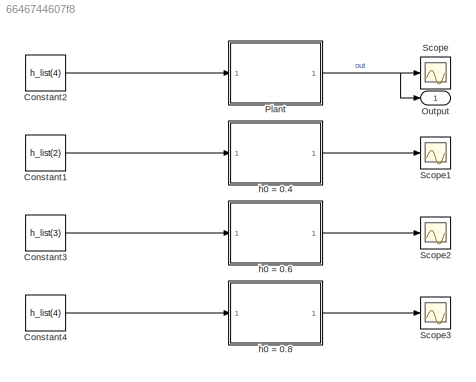
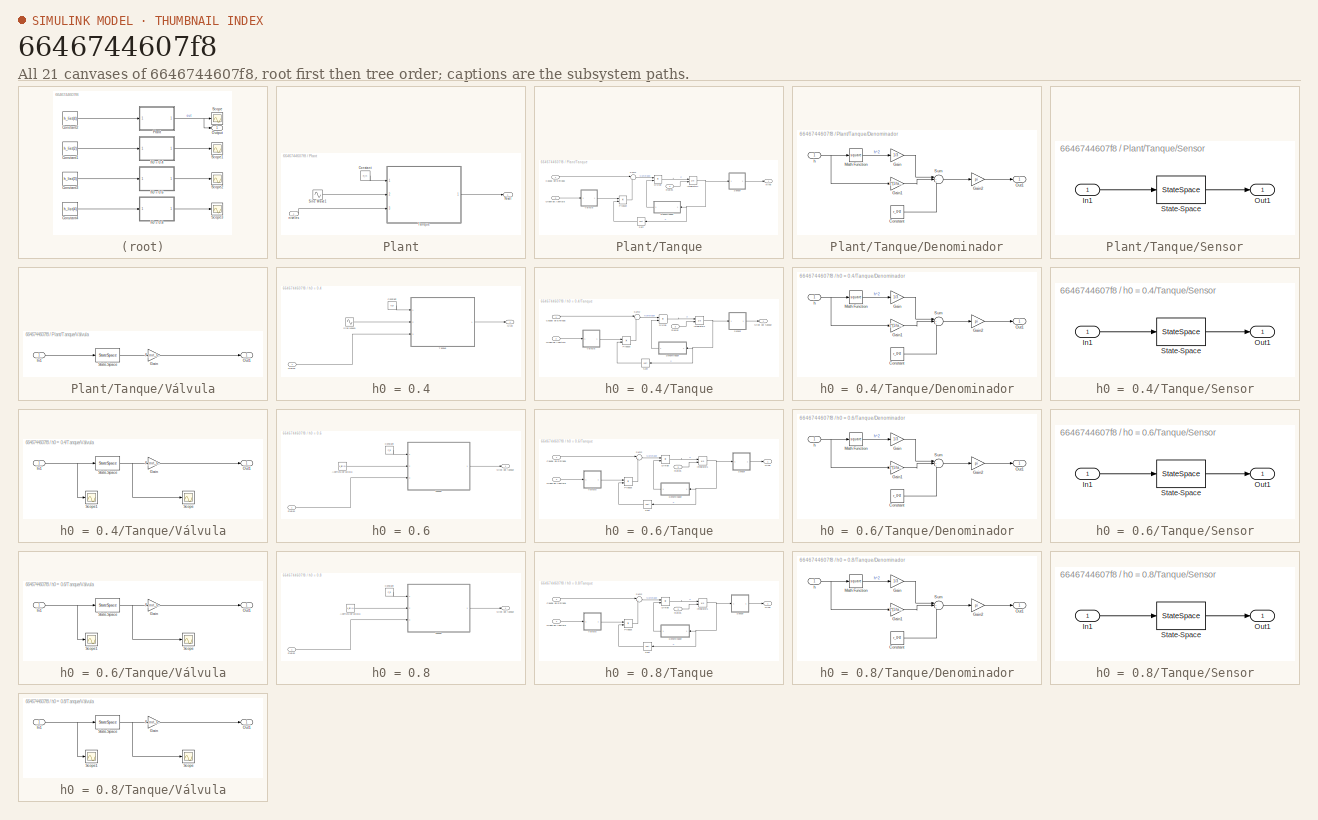
[diagram: thumbnail index - all 21 canvases of the model, root first then tree order]
MODEL slx_6646744607f8
KIND model
CONFIG AbsTol = auto
CONFIG EnableMultiTasking = off
CONFIG FixedStep = 0.1
CONFIG MaxStep = auto
CONFIG MinStep = auto
CONFIG RelTol = 1e-3
CONFIG SampleTimeConstraint = Unconstrained
CONFIG SolverName = FixedStepAuto
CONFIG StartTime = 0.0
CONFIG StopTime = 400
BLOCK [Constant] Constant1
  Commented = on
  Value = h_list(2)
BLOCK [Constant] Constant2
  Value = h_list(4)
BLOCK [Constant] Constant3
  Commented = on
  Value = h_list(3)
BLOCK [Constant] Constant4
  Commented = on
  Value = h_list(4)
BLOCK [Outport] Output
BLOCK [SubSystem] Plant
  Ports = [1, 1]
  RequestExecContextInheritance = off
BLOCK [Constant] Plant/Constant
  Value = F_in
BLOCK [Outport] Plant/Nivel
BLOCK [Sin] Plant/Sine Wave1
  Amplitude = 0.1
  Bias = k_list(4)
  Frequency = 10
  Ports = [0, 1]
  SampleTime = 0
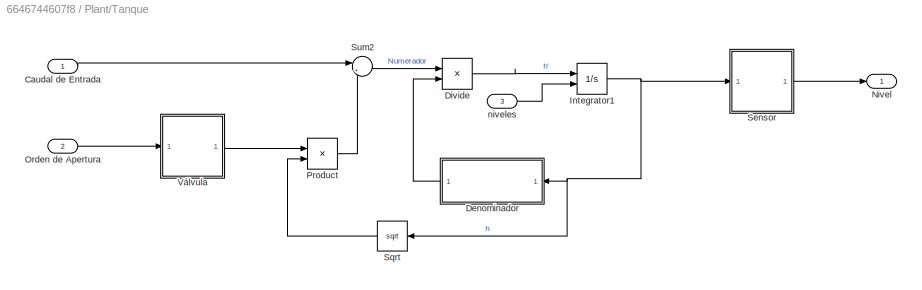
BLOCK [SubSystem] Plant/Tanque
  Ports = [3, 1]
  RequestExecContextInheritance = off
BLOCK [Inport] Plant/Tanque/Caudal de Entrada
BLOCK [SubSystem] Plant/Tanque/Denominador
  NameLocation = top
  Ports = [1, 1]
  RequestExecContextInheritance = off
BLOCK [Constant] Plant/Tanque/Denominador/Constant
  Value = r_0^2
BLOCK [Gain] Plant/Tanque/Denominador/Gain
  Gain = 1/3
BLOCK [Gain] Plant/Tanque/Denominador/Gain1
  Gain = 2*(1/tand(theta))*r_0
BLOCK [Gain] Plant/Tanque/Denominador/Gain2
  Gain = pi
BLOCK [Math] Plant/Tanque/Denominador/Math Function
  Operator = square
  Ports = [1, 1]
BLOCK [Outport] Plant/Tanque/Denominador/Out1
BLOCK [Sum] Plant/Tanque/Denominador/Sum
  Inputs = |+++
  Ports = [3, 1]
BLOCK [Inport] Plant/Tanque/Denominador/h
BLOCK [Product] Plant/Tanque/Divide
  Inputs = */
  Ports = [2, 1]
BLOCK [Integrator] Plant/Tanque/Integrator1
  InitialCondition = h_list(5)
  InitialConditionSource = external
  Ports = [2, 1]
BLOCK [Outport] Plant/Tanque/Nivel
BLOCK [Inport] Plant/Tanque/Orden de Apertura
  Port = 2
BLOCK [Product] Plant/Tanque/Product
  Ports = [2, 1]
BLOCK [SubSystem] Plant/Tanque/Sensor
  Ports = [1, 1]
  RequestExecContextInheritance = off
BLOCK [Inport] Plant/Tanque/Sensor/In1
BLOCK [Outport] Plant/Tanque/Sensor/Out1
BLOCK [StateSpace] Plant/Tanque/Sensor/State-Space
  A = A
  B = B
  C = C
  D = D
  InitialCondition = h_list(4)*10
  Ports = [1, 1]
BLOCK [Sqrt] Plant/Tanque/Sqrt
  NameLocation = top
BLOCK [Sum] Plant/Tanque/Sum2
  Inputs = |+-
  Ports = [2, 1]
BLOCK [SubSystem] Plant/Tanque/Válvula
  Ports = [1, 1]
  RequestExecContextInheritance = off
BLOCK [Gain] Plant/Tanque/Válvula/Gain
  Gain = F_out_sin_k
BLOCK [Inport] Plant/Tanque/Válvula/In1
BLOCK [Outport] Plant/Tanque/Válvula/Out1
BLOCK [StateSpace] Plant/Tanque/Válvula/State-Space
  A = A
  B = B
  C = C
  D = D
  InitialCondition = k_list(4)*10
  Ports = [1, 1]
BLOCK [Inport] Plant/Tanque/niveles
  Port = 3
BLOCK [Inport] Plant/niveles
BLOCK [Scope] Scope
  Floating = off
  NumInputPorts = 1
  Ports = [1]
  ScopeSpecificationString = Simulink.scopes.TimeScopeBlockCfg('CurrentConfiguration', extmgr.ConfigurationSet(extmgr.Configuration('Core','General UI',true),extmgr.Configuration('Core','Source UI',true),extmgr.Configuration('Sources','WiredSimulink',true,'DataLoggingVariableName','ScopeData6'),extmgr.Configuration('Visuals','Time Domain',true,'SerializedDisplays',{struct('MinYLimReal','0.1','MaxYLimReal','0.3','YLabelReal','...<+1355ch>
BLOCK [Scope] Scope1
  Commented = on
  Floating = off
  NumInputPorts = 1
  Ports = [1]
  ScopeSpecificationString = Simulink.scopes.TimeScopeBlockCfg('CurrentConfiguration', extmgr.ConfigurationSet(extmgr.Configuration('Core','General UI',true),extmgr.Configuration('Core','Source UI',true),extmgr.Configuration('Sources','WiredSimulink',true,'DataLoggingVariableName','ScopeData1'),extmgr.Configuration('Visuals','Time Domain',true,'SerializedDisplays',{struct('MinYLimReal','0.39675','MaxYLimReal','0.40036','YLabe...<+1389ch>
BLOCK [Scope] Scope2
  Commented = on
  Floating = off
  NumInputPorts = 1
  Ports = [1]
  ScopeSpecificationString = Simulink.scopes.TimeScopeBlockCfg('CurrentConfiguration', extmgr.ConfigurationSet(extmgr.Configuration('Core','General UI',true),extmgr.Configuration('Core','Source UI',true),extmgr.Configuration('Sources','WiredSimulink',true,'DataLoggingVariableName','ScopeData3'),extmgr.Configuration('Visuals','Time Domain',true,'SerializedDisplays',{struct('MinYLimReal','0.56673','MaxYLimReal','0.61376','YLabe...<+1389ch>
BLOCK [Scope] Scope3
  Commented = on
  Floating = off
  NumInputPorts = 1
  Ports = [1]
  ScopeSpecificationString = Simulink.scopes.TimeScopeBlockCfg('CurrentConfiguration', extmgr.ConfigurationSet(extmgr.Configuration('Core','General UI',true),extmgr.Configuration('Core','Source UI',true),extmgr.Configuration('Sources','WiredSimulink',true,'DataLoggingVariableName','ScopeData5'),extmgr.Configuration('Visuals','Time Domain',true,'SerializedDisplays',{struct('MinYLimReal','0.70373','MaxYLimReal','0.83416','YLabe...<+1389ch>
BLOCK [SubSystem] h0 = 0.4
  Commented = on
  Ports = [1, 1]
  RequestExecContextInheritance = off
BLOCK [Constant] h0 = 0.4/Constant
  Value = F_in
BLOCK [Outport] h0 = 0.4/Nivel
BLOCK [Sin] h0 = 0.4/Sine Wave1
  Amplitude = 0.1
  Bias = k_list(1)
  Frequency = 10
  Ports = [0, 1]
  SampleTime = 0
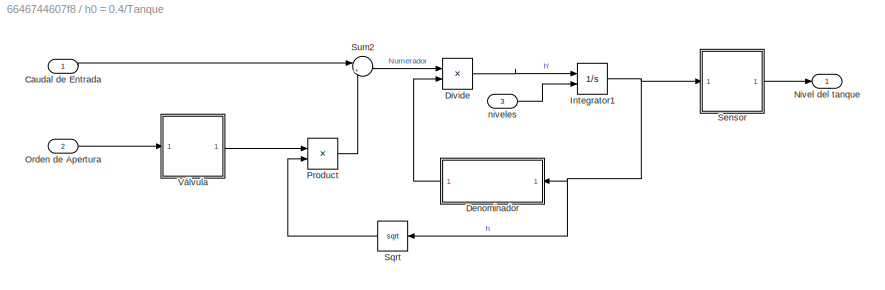
BLOCK [SubSystem] h0 = 0.4/Tanque
  Ports = [3, 1]
  RequestExecContextInheritance = off
BLOCK [Inport] h0 = 0.4/Tanque/Caudal de Entrada
BLOCK [SubSystem] h0 = 0.4/Tanque/Denominador
  NameLocation = top
  Ports = [1, 1]
  RequestExecContextInheritance = off
BLOCK [Constant] h0 = 0.4/Tanque/Denominador/Constant
  Value = r_0^2
BLOCK [Gain] h0 = 0.4/Tanque/Denominador/Gain
  Gain = 1/3
BLOCK [Gain] h0 = 0.4/Tanque/Denominador/Gain1
  Gain = 2*(1/tand(theta))*r_0
BLOCK [Gain] h0 = 0.4/Tanque/Denominador/Gain2
  Gain = pi
BLOCK [Math] h0 = 0.4/Tanque/Denominador/Math Function
  Operator = square
  Ports = [1, 1]
BLOCK [Outport] h0 = 0.4/Tanque/Denominador/Out1
BLOCK [Sum] h0 = 0.4/Tanque/Denominador/Sum
  Inputs = |+++
  Ports = [3, 1]
BLOCK [Inport] h0 = 0.4/Tanque/Denominador/h
BLOCK [Product] h0 = 0.4/Tanque/Divide
  Inputs = */
  Ports = [2, 1]
BLOCK [Integrator] h0 = 0.4/Tanque/Integrator1
  InitialCondition = h_list(5)
  InitialConditionSource = external
  Ports = [2, 1]
BLOCK [Outport] h0 = 0.4/Tanque/Nivel del tanque
BLOCK [Inport] h0 = 0.4/Tanque/Orden de Apertura
  Port = 2
BLOCK [Product] h0 = 0.4/Tanque/Product
  Ports = [2, 1]
BLOCK [SubSystem] h0 = 0.4/Tanque/Sensor
  Ports = [1, 1]
  RequestExecContextInheritance = off
BLOCK [Inport] h0 = 0.4/Tanque/Sensor/In1
BLOCK [Outport] h0 = 0.4/Tanque/Sensor/Out1
BLOCK [StateSpace] h0 = 0.4/Tanque/Sensor/State-Space
  A = A
  B = B
  C = C
  D = D
  InitialCondition = h_list(2)*10
  Ports = [1, 1]
BLOCK [Sqrt] h0 = 0.4/Tanque/Sqrt
  NameLocation = top
BLOCK [Sum] h0 = 0.4/Tanque/Sum2
  Inputs = |+-
  Ports = [2, 1]
BLOCK [SubSystem] h0 = 0.4/Tanque/Válvula
  Ports = [1, 1]
  RequestExecContextInheritance = off
BLOCK [Gain] h0 = 0.4/Tanque/Válvula/Gain
  Gain = F_out_sin_k
BLOCK [Inport] h0 = 0.4/Tanque/Válvula/In1
BLOCK [Outport] h0 = 0.4/Tanque/Válvula/Out1
BLOCK [Scope] h0 = 0.4/Tanque/Válvula/Scope
  Floating = off
  NumInputPorts = 1
  Ports = [1]
  ScopeSpecificationString = Simulink.scopes.TimeScopeBlockCfg('CurrentConfiguration', extmgr.ConfigurationSet(extmgr.Configuration('Core','General UI',true),extmgr.Configuration('Core','Source UI',true),extmgr.Configuration('Sources','WiredSimulink',true,'DataLoggingVariableName','ScopeData2'),extmgr.Configuration('Visuals','Time Domain',true,'SerializedDisplays',{struct('MinYLimReal','0.87172','MaxYLimReal','0.87188','YLabe...<+1368ch>
BLOCK [Scope] h0 = 0.4/Tanque/Válvula/Scope1
  Floating = off
  NumInputPorts = 1
  Ports = [1]
  ScopeSpecificationString = Simulink.scopes.TimeScopeBlockCfg('CurrentConfiguration', extmgr.ConfigurationSet(extmgr.Configuration('Core','General UI',true),extmgr.Configuration('Core','Source UI',true),extmgr.Configuration('Sources','WiredSimulink',true,'DataLoggingVariableName','ScopeData4'),extmgr.Configuration('Visuals','Time Domain',true,'SerializedDisplays',{struct('MinYLimReal','0.77174','MaxYLimReal','0.97174','YLabe...<+1360ch>
BLOCK [StateSpace] h0 = 0.4/Tanque/Válvula/State-Space
  A = A
  B = B
  C = C
  D = D
  InitialCondition = k_list(2)*10
  Ports = [1, 1]
BLOCK [Inport] h0 = 0.4/Tanque/niveles
  Port = 3
BLOCK [Inport] h0 = 0.4/niveles
BLOCK [SubSystem] h0 = 0.6
  Commented = on
  Ports = [1, 1]
  RequestExecContextInheritance = off
BLOCK [Constant] h0 = 0.6/Apertura de válvula
  Value = k_list(3)
BLOCK [Constant] h0 = 0.6/Constant
  Value = F_in
BLOCK [Outport] h0 = 0.6/Nivel del tanque
BLOCK [SubSystem] h0 = 0.6/Tanque
  Ports = [3, 1]
  RequestExecContextInheritance = off
BLOCK [Inport] h0 = 0.6/Tanque/Caudal de Entrada
BLOCK [SubSystem] h0 = 0.6/Tanque/Denominador
  NameLocation = top
  Ports = [1, 1]
  RequestExecContextInheritance = off
BLOCK [Constant] h0 = 0.6/Tanque/Denominador/Constant
  Value = r_0^2
BLOCK [Gain] h0 = 0.6/Tanque/Denominador/Gain
  Gain = 1/3
BLOCK [Gain] h0 = 0.6/Tanque/Denominador/Gain1
  Gain = 2*(1/tand(theta))*r_0
BLOCK [Gain] h0 = 0.6/Tanque/Denominador/Gain2
  Gain = pi
BLOCK [Math] h0 = 0.6/Tanque/Denominador/Math Function
  Operator = square
  Ports = [1, 1]
BLOCK [Outport] h0 = 0.6/Tanque/Denominador/Out1
BLOCK [Sum] h0 = 0.6/Tanque/Denominador/Sum
  Inputs = |+++
  Ports = [3, 1]
BLOCK [Inport] h0 = 0.6/Tanque/Denominador/h
BLOCK [Product] h0 = 0.6/Tanque/Divide
  Inputs = */
  Ports = [2, 1]
BLOCK [Integrator] h0 = 0.6/Tanque/Integrator1
  InitialCondition = h_list(5)
  InitialConditionSource = external
  Ports = [2, 1]
BLOCK [Outport] h0 = 0.6/Tanque/Nivel
BLOCK [Inport] h0 = 0.6/Tanque/Orden de Apertura
  Port = 2
BLOCK [Product] h0 = 0.6/Tanque/Product
  Ports = [2, 1]
BLOCK [SubSystem] h0 = 0.6/Tanque/Sensor
  Ports = [1, 1]
  RequestExecContextInheritance = off
BLOCK [Inport] h0 = 0.6/Tanque/Sensor/In1
BLOCK [Outport] h0 = 0.6/Tanque/Sensor/Out1
BLOCK [StateSpace] h0 = 0.6/Tanque/Sensor/State-Space
  A = A
  B = B
  C = C
  D = D
  InitialCondition = h_list(3)*10
  Ports = [1, 1]
BLOCK [Sqrt] h0 = 0.6/Tanque/Sqrt
  NameLocation = top
BLOCK [Sum] h0 = 0.6/Tanque/Sum2
  Inputs = |+-
  Ports = [2, 1]
BLOCK [SubSystem] h0 = 0.6/Tanque/Válvula
  Ports = [1, 1]
  RequestExecContextInheritance = off
BLOCK [Gain] h0 = 0.6/Tanque/Válvula/Gain
  Gain = F_out_sin_k
BLOCK [Inport] h0 = 0.6/Tanque/Válvula/In1
BLOCK [Outport] h0 = 0.6/Tanque/Válvula/Out1
BLOCK [Scope] h0 = 0.6/Tanque/Válvula/Scope
  Floating = off
  NumInputPorts = 1
  Ports = [1]
  ScopeSpecificationString = Simulink.scopes.TimeScopeBlockCfg('CurrentConfiguration', extmgr.ConfigurationSet(extmgr.Configuration('Core','General UI',true),extmgr.Configuration('Core','Source UI',true),extmgr.Configuration('Sources','WiredSimulink',true,'DataLoggingVariableName','ScopeData2'),extmgr.Configuration('Visuals','Time Domain',true,'SerializedDisplays',{struct('MinYLimReal','0.50324','MaxYLimReal','0.50386','YLabe...<+1368ch>
BLOCK [Scope] h0 = 0.6/Tanque/Válvula/Scope1
  Floating = off
  NumInputPorts = 1
  Ports = [1]
  ScopeSpecificationString = Simulink.scopes.TimeScopeBlockCfg('CurrentConfiguration', extmgr.ConfigurationSet(extmgr.Configuration('Core','General UI',true),extmgr.Configuration('Core','Source UI',true),extmgr.Configuration('Sources','WiredSimulink',true,'DataLoggingVariableName','ScopeData4'),extmgr.Configuration('Visuals','Time Domain',true,'SerializedDisplays',{struct('MinYLimReal','0.44121','MaxYLimReal','1.06209','YLabe...<+1360ch>
BLOCK [StateSpace] h0 = 0.6/Tanque/Válvula/State-Space
  A = A
  B = B
  C = C
  D = D
  InitialCondition = k_list(3)*10
  Ports = [1, 1]
BLOCK [Inport] h0 = 0.6/Tanque/niveles
  Port = 3
BLOCK [Inport] h0 = 0.6/niveles
BLOCK [SubSystem] h0 = 0.8
  Commented = on
  Ports = [1, 1]
  RequestExecContextInheritance = off
BLOCK [Constant] h0 = 0.8/Apertura de válvula
  Value = k_list(4)
BLOCK [Constant] h0 = 0.8/Constant
  Value = F_in
BLOCK [Outport] h0 = 0.8/Nivel del tanque
BLOCK [SubSystem] h0 = 0.8/Tanque
  Ports = [3, 1]
  RequestExecContextInheritance = off
BLOCK [Inport] h0 = 0.8/Tanque/Caudal de Entrada
BLOCK [SubSystem] h0 = 0.8/Tanque/Denominador
  NameLocation = top
  Ports = [1, 1]
  RequestExecContextInheritance = off
BLOCK [Constant] h0 = 0.8/Tanque/Denominador/Constant
  Value = r_0^2
BLOCK [Gain] h0 = 0.8/Tanque/Denominador/Gain
  Gain = 1/3
BLOCK [Gain] h0 = 0.8/Tanque/Denominador/Gain1
  Gain = 2*(1/tand(theta))*r_0
BLOCK [Gain] h0 = 0.8/Tanque/Denominador/Gain2
  Gain = pi
BLOCK [Math] h0 = 0.8/Tanque/Denominador/Math Function
  Operator = square
  Ports = [1, 1]
BLOCK [Outport] h0 = 0.8/Tanque/Denominador/Out1
BLOCK [Sum] h0 = 0.8/Tanque/Denominador/Sum
  Inputs = |+++
  Ports = [3, 1]
BLOCK [Inport] h0 = 0.8/Tanque/Denominador/h
BLOCK [Product] h0 = 0.8/Tanque/Divide
  Inputs = */
  Ports = [2, 1]
BLOCK [Integrator] h0 = 0.8/Tanque/Integrator1
  InitialCondition = h_list(5)
  InitialConditionSource = external
  Ports = [2, 1]
BLOCK [Outport] h0 = 0.8/Tanque/Nivel
BLOCK [Inport] h0 = 0.8/Tanque/Orden de Apertura
  Port = 2
BLOCK [Product] h0 = 0.8/Tanque/Product
  Ports = [2, 1]
BLOCK [SubSystem] h0 = 0.8/Tanque/Sensor
  Ports = [1, 1]
  RequestExecContextInheritance = off
BLOCK [Inport] h0 = 0.8/Tanque/Sensor/In1
BLOCK [Outport] h0 = 0.8/Tanque/Sensor/Out1
BLOCK [StateSpace] h0 = 0.8/Tanque/Sensor/State-Space
  A = A
  B = B
  C = C
  D = D
  InitialCondition = h_list(4)*10
  Ports = [1, 1]
BLOCK [Sqrt] h0 = 0.8/Tanque/Sqrt
  NameLocation = top
BLOCK [Sum] h0 = 0.8/Tanque/Sum2
  Inputs = |+-
  Ports = [2, 1]
BLOCK [SubSystem] h0 = 0.8/Tanque/Válvula
  Ports = [1, 1]
  RequestExecContextInheritance = off
BLOCK [Gain] h0 = 0.8/Tanque/Válvula/Gain
  Gain = F_out_sin_k
BLOCK [Inport] h0 = 0.8/Tanque/Válvula/In1
BLOCK [Outport] h0 = 0.8/Tanque/Válvula/Out1
BLOCK [Scope] h0 = 0.8/Tanque/Válvula/Scope
  Floating = off
  NumInputPorts = 1
  Ports = [1]
  ScopeSpecificationString = Simulink.scopes.TimeScopeBlockCfg('CurrentConfiguration', extmgr.ConfigurationSet(extmgr.Configuration('Core','General UI',true),extmgr.Configuration('Core','Source UI',true),extmgr.Configuration('Sources','WiredSimulink',true,'DataLoggingVariableName','ScopeData2'),extmgr.Configuration('Visuals','Time Domain',true,'SerializedDisplays',{struct('MinYLimReal','0.4358','MaxYLimReal','0.4365','YLabelR...<+1360ch>
BLOCK [Scope] h0 = 0.8/Tanque/Válvula/Scope1
  Floating = off
  NumInputPorts = 1
  Ports = [1]
  ScopeSpecificationString = Simulink.scopes.TimeScopeBlockCfg('CurrentConfiguration', extmgr.ConfigurationSet(extmgr.Configuration('Core','General UI',true),extmgr.Configuration('Core','Source UI',true),extmgr.Configuration('Sources','WiredSimulink',true,'DataLoggingVariableName','ScopeData4'),extmgr.Configuration('Visuals','Time Domain',true,'SerializedDisplays',{struct('MinYLimReal','0.77174','MaxYLimReal','0.97174','YLabe...<+1360ch>
BLOCK [StateSpace] h0 = 0.8/Tanque/Válvula/State-Space
  A = A
  B = B
  C = C
  D = D
  InitialCondition = k_list(4)*10
  Ports = [1, 1]
BLOCK [Inport] h0 = 0.8/Tanque/niveles
  Port = 3
BLOCK [Inport] h0 = 0.8/niveles
LINE Constant1:1 -> h0 = 0.4:1
LINE Constant2:1 -> Plant:1
LINE Constant3:1 -> h0 = 0.6:1
LINE Constant4:1 -> h0 = 0.8:1
LINE Plant/Constant:1 -> Plant/Tanque:1
LINE Plant/Sine Wave1:1 -> Plant/Tanque:2
LINE Plant/Tanque/Caudal de Entrada:1 -> Plant/Tanque/Sum2:1
LINE Plant/Tanque/Denominador/Constant:1 -> Plant/Tanque/Denominador/Sum:3
LINE Plant/Tanque/Denominador/Gain1:1 -> Plant/Tanque/Denominador/Sum:2
LINE Plant/Tanque/Denominador/Gain2:1 -> Plant/Tanque/Denominador/Out1:1
LINE Plant/Tanque/Denominador/Gain:1 -> Plant/Tanque/Denominador/Sum:1
LINE Plant/Tanque/Denominador/Math Function:1 -> Plant/Tanque/Denominador/Gain:1
LINE Plant/Tanque/Denominador/Sum:1 -> Plant/Tanque/Denominador/Gain2:1
NET Plant/Tanque/Denominador/h:1 -> Plant/Tanque/Denominador/Gain1:1, Plant/Tanque/Denominador/Math Function:1
LINE Plant/Tanque/Denominador:1 -> Plant/Tanque/Divide:2
LINE Plant/Tanque/Divide:1 -> Plant/Tanque/Integrator1:1
NET Plant/Tanque/Integrator1:1 -> Plant/Tanque/Denominador:1, Plant/Tanque/Sensor:1, Plant/Tanque/Sqrt:1
LINE Plant/Tanque/Orden de Apertura:1 -> Plant/Tanque/Válvula:1
LINE Plant/Tanque/Product:1 -> Plant/Tanque/Sum2:2
LINE Plant/Tanque/Sensor/In1:1 -> Plant/Tanque/Sensor/State-Space:1
LINE Plant/Tanque/Sensor/State-Space:1 -> Plant/Tanque/Sensor/Out1:1
LINE Plant/Tanque/Sensor:1 -> Plant/Tanque/Nivel:1
LINE Plant/Tanque/Sqrt:1 -> Plant/Tanque/Product:2
LINE Plant/Tanque/Sum2:1 -> Plant/Tanque/Divide:1
LINE Plant/Tanque/Válvula/Gain:1 -> Plant/Tanque/Válvula/Out1:1
LINE Plant/Tanque/Válvula/In1:1 -> Plant/Tanque/Válvula/State-Space:1
LINE Plant/Tanque/Válvula/State-Space:1 -> Plant/Tanque/Válvula/Gain:1
LINE Plant/Tanque/Válvula:1 -> Plant/Tanque/Product:1
LINE Plant/Tanque/niveles:1 -> Plant/Tanque/Integrator1:2
LINE Plant/Tanque:1 -> Plant/Nivel:1
LINE Plant/niveles:1 -> Plant/Tanque:3
NET Plant:1 -> Output:1, Scope:1
LINE h0 = 0.4/Constant:1 -> h0 = 0.4/Tanque:1
LINE h0 = 0.4/Sine Wave1:1 -> h0 = 0.4/Tanque:2
LINE h0 = 0.4/Tanque/Caudal de Entrada:1 -> h0 = 0.4/Tanque/Sum2:1
LINE h0 = 0.4/Tanque/Denominador/Constant:1 -> h0 = 0.4/Tanque/Denominador/Sum:3
LINE h0 = 0.4/Tanque/Denominador/Gain1:1 -> h0 = 0.4/Tanque/Denominador/Sum:2
LINE h0 = 0.4/Tanque/Denominador/Gain2:1 -> h0 = 0.4/Tanque/Denominador/Out1:1
LINE h0 = 0.4/Tanque/Denominador/Gain:1 -> h0 = 0.4/Tanque/Denominador/Sum:1
LINE h0 = 0.4/Tanque/Denominador/Math Function:1 -> h0 = 0.4/Tanque/Denominador/Gain:1
LINE h0 = 0.4/Tanque/Denominador/Sum:1 -> h0 = 0.4/Tanque/Denominador/Gain2:1
NET h0 = 0.4/Tanque/Denominador/h:1 -> h0 = 0.4/Tanque/Denominador/Gain1:1, h0 = 0.4/Tanque/Denominador/Math Function:1
LINE h0 = 0.4/Tanque/Denominador:1 -> h0 = 0.4/Tanque/Divide:2
LINE h0 = 0.4/Tanque/Divide:1 -> h0 = 0.4/Tanque/Integrator1:1
NET h0 = 0.4/Tanque/Integrator1:1 -> h0 = 0.4/Tanque/Denominador:1, h0 = 0.4/Tanque/Sensor:1, h0 = 0.4/Tanque/Sqrt:1
LINE h0 = 0.4/Tanque/Orden de Apertura:1 -> h0 = 0.4/Tanque/Válvula:1
LINE h0 = 0.4/Tanque/Product:1 -> h0 = 0.4/Tanque/Sum2:2
LINE h0 = 0.4/Tanque/Sensor/In1:1 -> h0 = 0.4/Tanque/Sensor/State-Space:1
LINE h0 = 0.4/Tanque/Sensor/State-Space:1 -> h0 = 0.4/Tanque/Sensor/Out1:1
LINE h0 = 0.4/Tanque/Sensor:1 -> h0 = 0.4/Tanque/Nivel del tanque:1
LINE h0 = 0.4/Tanque/Sqrt:1 -> h0 = 0.4/Tanque/Product:2
LINE h0 = 0.4/Tanque/Sum2:1 -> h0 = 0.4/Tanque/Divide:1
LINE h0 = 0.4/Tanque/Válvula/Gain:1 -> h0 = 0.4/Tanque/Válvula/Out1:1
NET h0 = 0.4/Tanque/Válvula/In1:1 -> h0 = 0.4/Tanque/Válvula/Scope1:1, h0 = 0.4/Tanque/Válvula/State-Space:1
NET h0 = 0.4/Tanque/Válvula/State-Space:1 -> h0 = 0.4/Tanque/Válvula/Gain:1, h0 = 0.4/Tanque/Válvula/Scope:1
LINE h0 = 0.4/Tanque/Válvula:1 -> h0 = 0.4/Tanque/Product:1
LINE h0 = 0.4/Tanque/niveles:1 -> h0 = 0.4/Tanque/Integrator1:2
LINE h0 = 0.4/Tanque:1 -> h0 = 0.4/Nivel:1
LINE h0 = 0.4/niveles:1 -> h0 = 0.4/Tanque:3
LINE h0 = 0.4:1 -> Scope1:1
LINE h0 = 0.6/Apertura de válvula:1 -> h0 = 0.6/Tanque:2
LINE h0 = 0.6/Constant:1 -> h0 = 0.6/Tanque:1
LINE h0 = 0.6/Tanque/Caudal de Entrada:1 -> h0 = 0.6/Tanque/Sum2:1
LINE h0 = 0.6/Tanque/Denominador/Constant:1 -> h0 = 0.6/Tanque/Denominador/Sum:3
LINE h0 = 0.6/Tanque/Denominador/Gain1:1 -> h0 = 0.6/Tanque/Denominador/Sum:2
LINE h0 = 0.6/Tanque/Denominador/Gain2:1 -> h0 = 0.6/Tanque/Denominador/Out1:1
LINE h0 = 0.6/Tanque/Denominador/Gain:1 -> h0 = 0.6/Tanque/Denominador/Sum:1
LINE h0 = 0.6/Tanque/Denominador/Math Function:1 -> h0 = 0.6/Tanque/Denominador/Gain:1
LINE h0 = 0.6/Tanque/Denominador/Sum:1 -> h0 = 0.6/Tanque/Denominador/Gain2:1
NET h0 = 0.6/Tanque/Denominador/h:1 -> h0 = 0.6/Tanque/Denominador/Gain1:1, h0 = 0.6/Tanque/Denominador/Math Function:1
LINE h0 = 0.6/Tanque/Denominador:1 -> h0 = 0.6/Tanque/Divide:2
LINE h0 = 0.6/Tanque/Divide:1 -> h0 = 0.6/Tanque/Integrator1:1
NET h0 = 0.6/Tanque/Integrator1:1 -> h0 = 0.6/Tanque/Denominador:1, h0 = 0.6/Tanque/Sensor:1, h0 = 0.6/Tanque/Sqrt:1
LINE h0 = 0.6/Tanque/Orden de Apertura:1 -> h0 = 0.6/Tanque/Válvula:1
LINE h0 = 0.6/Tanque/Product:1 -> h0 = 0.6/Tanque/Sum2:2
LINE h0 = 0.6/Tanque/Sensor/In1:1 -> h0 = 0.6/Tanque/Sensor/State-Space:1
LINE h0 = 0.6/Tanque/Sensor/State-Space:1 -> h0 = 0.6/Tanque/Sensor/Out1:1
LINE h0 = 0.6/Tanque/Sensor:1 -> h0 = 0.6/Tanque/Nivel:1
LINE h0 = 0.6/Tanque/Sqrt:1 -> h0 = 0.6/Tanque/Product:2
LINE h0 = 0.6/Tanque/Sum2:1 -> h0 = 0.6/Tanque/Divide:1
LINE h0 = 0.6/Tanque/Válvula/Gain:1 -> h0 = 0.6/Tanque/Válvula/Out1:1
NET h0 = 0.6/Tanque/Válvula/In1:1 -> h0 = 0.6/Tanque/Válvula/Scope1:1, h0 = 0.6/Tanque/Válvula/State-Space:1
NET h0 = 0.6/Tanque/Válvula/State-Space:1 -> h0 = 0.6/Tanque/Válvula/Gain:1, h0 = 0.6/Tanque/Válvula/Scope:1
LINE h0 = 0.6/Tanque/Válvula:1 -> h0 = 0.6/Tanque/Product:1
LINE h0 = 0.6/Tanque/niveles:1 -> h0 = 0.6/Tanque/Integrator1:2
LINE h0 = 0.6/Tanque:1 -> h0 = 0.6/Nivel del tanque:1
LINE h0 = 0.6/niveles:1 -> h0 = 0.6/Tanque:3
LINE h0 = 0.6:1 -> Scope2:1
LINE h0 = 0.8/Apertura de válvula:1 -> h0 = 0.8/Tanque:2
LINE h0 = 0.8/Constant:1 -> h0 = 0.8/Tanque:1
LINE h0 = 0.8/Tanque/Caudal de Entrada:1 -> h0 = 0.8/Tanque/Sum2:1
LINE h0 = 0.8/Tanque/Denominador/Constant:1 -> h0 = 0.8/Tanque/Denominador/Sum:3
LINE h0 = 0.8/Tanque/Denominador/Gain1:1 -> h0 = 0.8/Tanque/Denominador/Sum:2
LINE h0 = 0.8/Tanque/Denominador/Gain2:1 -> h0 = 0.8/Tanque/Denominador/Out1:1
LINE h0 = 0.8/Tanque/Denominador/Gain:1 -> h0 = 0.8/Tanque/Denominador/Sum:1
LINE h0 = 0.8/Tanque/Denominador/Math Function:1 -> h0 = 0.8/Tanque/Denominador/Gain:1
LINE h0 = 0.8/Tanque/Denominador/Sum:1 -> h0 = 0.8/Tanque/Denominador/Gain2:1
NET h0 = 0.8/Tanque/Denominador/h:1 -> h0 = 0.8/Tanque/Denominador/Gain1:1, h0 = 0.8/Tanque/Denominador/Math Function:1
LINE h0 = 0.8/Tanque/Denominador:1 -> h0 = 0.8/Tanque/Divide:2
LINE h0 = 0.8/Tanque/Divide:1 -> h0 = 0.8/Tanque/Integrator1:1
NET h0 = 0.8/Tanque/Integrator1:1 -> h0 = 0.8/Tanque/Denominador:1, h0 = 0.8/Tanque/Sensor:1, h0 = 0.8/Tanque/Sqrt:1
LINE h0 = 0.8/Tanque/Orden de Apertura:1 -> h0 = 0.8/Tanque/Válvula:1
LINE h0 = 0.8/Tanque/Product:1 -> h0 = 0.8/Tanque/Sum2:2
LINE h0 = 0.8/Tanque/Sensor/In1:1 -> h0 = 0.8/Tanque/Sensor/State-Space:1
LINE h0 = 0.8/Tanque/Sensor/State-Space:1 -> h0 = 0.8/Tanque/Sensor/Out1:1
LINE h0 = 0.8/Tanque/Sensor:1 -> h0 = 0.8/Tanque/Nivel:1
LINE h0 = 0.8/Tanque/Sqrt:1 -> h0 = 0.8/Tanque/Product:2
LINE h0 = 0.8/Tanque/Sum2:1 -> h0 = 0.8/Tanque/Divide:1
LINE h0 = 0.8/Tanque/Válvula/Gain:1 -> h0 = 0.8/Tanque/Válvula/Out1:1
NET h0 = 0.8/Tanque/Válvula/In1:1 -> h0 = 0.8/Tanque/Válvula/Scope1:1, h0 = 0.8/Tanque/Válvula/State-Space:1
NET h0 = 0.8/Tanque/Válvula/State-Space:1 -> h0 = 0.8/Tanque/Válvula/Gain:1, h0 = 0.8/Tanque/Válvula/Scope:1
LINE h0 = 0.8/Tanque/Válvula:1 -> h0 = 0.8/Tanque/Product:1
LINE h0 = 0.8/Tanque/niveles:1 -> h0 = 0.8/Tanque/Integrator1:2
LINE h0 = 0.8/Tanque:1 -> h0 = 0.8/Nivel del tanque:1
LINE h0 = 0.8/niveles:1 -> h0 = 0.8/Tanque:3
LINE h0 = 0.8:1 -> Scope3:1
note: NET lines group one-source signal fan-out (src -> all destinations, sorted); 1:1 wires keep LINE
